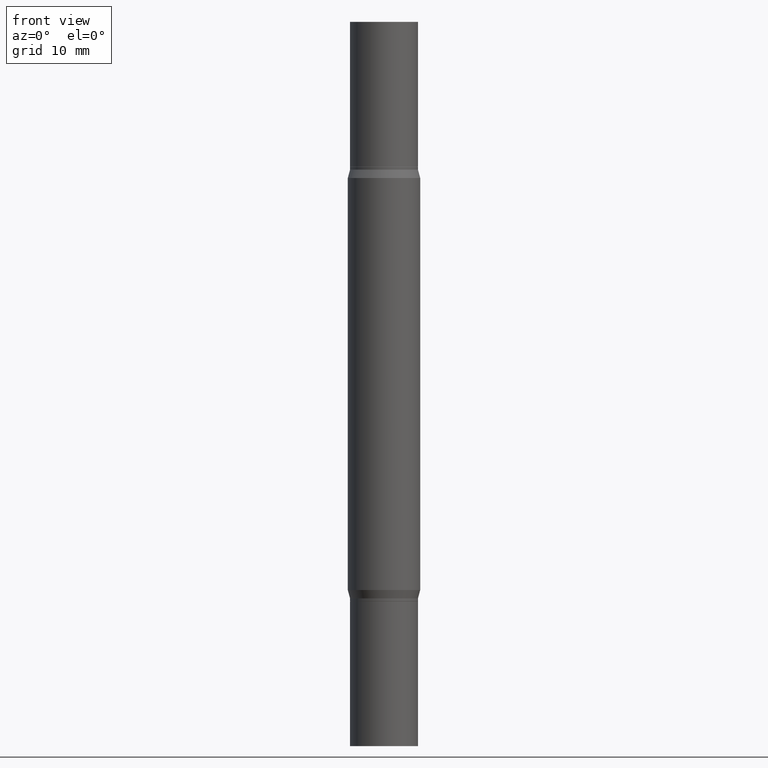
[diagram: clean part render]
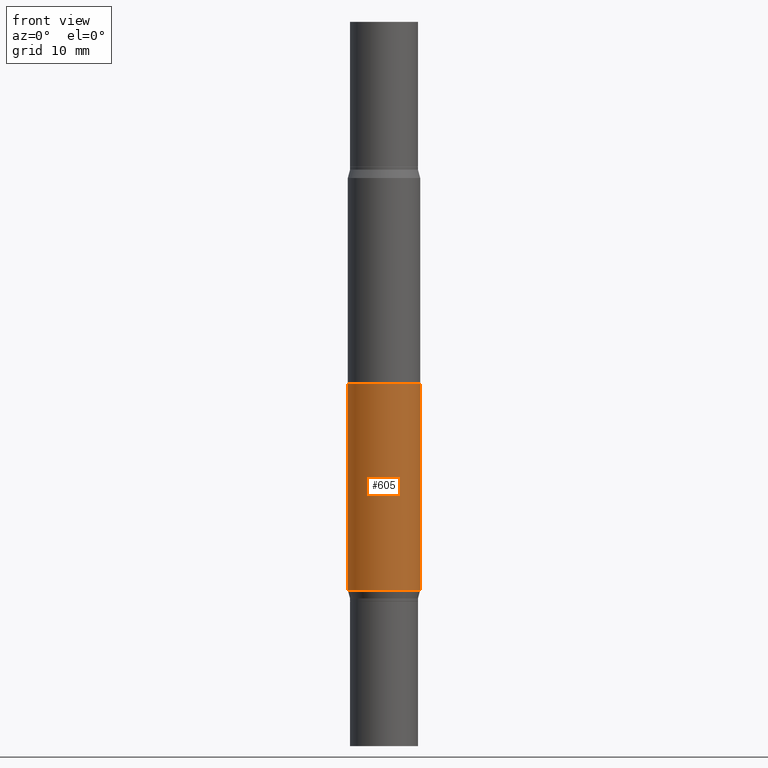
[diagram: same view with one face highlighted and labeled with its STEP entity id]
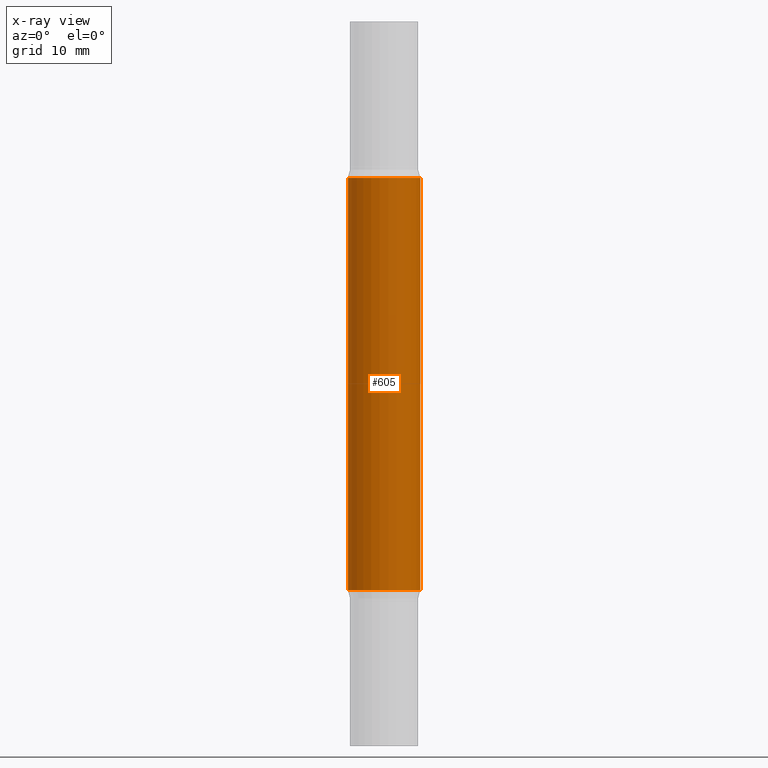
[diagram: x-ray of the same camera — body ghosted, the highlighted face saturated]
A machine part, front view. The second image highlights one B-rep face of the part: STEP entity #605.
The next image is the same camera in x-ray: the body ghosted, the highlighted face saturated — about 0% of this face is hidden behind the body in this view.
In plain terms, the highlighted cylindrical surface (edge-blend (fillet) strip) has radius 3.175 mm, axis along (-0, -0, -1).
Its self-contained STEP definition (entity closure, byte-faithful):
#47 = VECTOR ( 'NONE', #360, 39.37007874015748143 ) ;
#157 = DIRECTION ( 'NONE',  ( -2.445468806185136597E-29, -3.491805094961124077E-15, -1.000000000000000000 ) ) ;
#162 = DIRECTION ( 'NONE',  ( 1.000000000000000000, -6.982962677686266711E-15, 0.000000000000000000 ) ) ;
#180 = DIRECTION ( 'NONE',  ( 2.445468806185136597E-29, 3.491805094961124077E-15, 1.000000000000000000 ) ) ;
#208 = CARTESIAN_POINT ( 'NONE',  ( 0.1250000000000000000, -9.601978376966118441E-15, -2.499999999999999556 ) ) ;
#231 = ORIENTED_EDGE ( 'NONE', *, *, #818, .F. ) ;
#257 = VERTEX_POINT ( 'NONE', #798 ) ;
#287 = AXIS2_PLACEMENT_3D ( 'NONE', #743, #907, #298 ) ;
#298 = DIRECTION ( 'NONE',  ( 1.000000000000000000, -6.982962677686270655E-15, 0.000000000000000000 ) ) ;
#302 = VECTOR ( 'NONE', #559, 39.37007874015748143 ) ;
#312 = CARTESIAN_POINT ( 'NONE',  ( 4.795295336410958635E-29, -1.882062336673981410E-15, -0.5391099962990381078 ) ) ;
#360 = DIRECTION ( 'NONE',  ( -2.445468806185136877E-29, -3.491805094961123683E-15, -1.000000000000000000 ) ) ;
#394 = FACE_OUTER_BOUND ( 'NONE', #482, .T. ) ;
#432 = EDGE_CURVE ( 'NONE', #736, #440, #795, .T. ) ;
#440 = VERTEX_POINT ( 'NONE', #904 ) ;
#464 = VERTEX_POINT ( 'NONE', #894 ) ;
#482 = EDGE_LOOP ( 'NONE', ( #822, #733, #748, #231 ) ) ;
#484 = CYLINDRICAL_SURFACE ( 'NONE', #744, 0.1250000000000000000 ) ;
#544 = DIRECTION ( 'NONE',  ( 1.000000000000000000, -6.982962677686262766E-15, 0.000000000000000000 ) ) ;
#559 = DIRECTION ( 'NONE',  ( -2.445468806185136877E-29, -3.491805094961123683E-15, -1.000000000000000000 ) ) ;
#561 = EDGE_CURVE ( 'NONE', #257, #464, #915, .T. ) ;
#605 = ADVANCED_FACE ( 'NONE', ( #394 ), #484, .T. ) ;
#636 = AXIS2_PLACEMENT_3D ( 'NONE', #312, #180, #162 ) ;
#717 = CARTESIAN_POINT ( 'NONE',  ( -0.1250000000000000000, -7.871545792533893657E-15, -2.499999999999999556 ) ) ;
#733 = ORIENTED_EDGE ( 'NONE', *, *, #782, .T. ) ;
#736 = VERTEX_POINT ( 'NONE', #797 ) ;
#743 = CARTESIAN_POINT ( 'NONE',  ( 4.795295336410958635E-29, -6.846410855445973637E-15, -1.960890003700961337 ) ) ;
#744 = AXIS2_PLACEMENT_3D ( 'NONE', #783, #157, #544 ) ;
#748 = ORIENTED_EDGE ( 'NONE', *, *, #432, .T. ) ;
#782 = EDGE_CURVE ( 'NONE', #257, #736, #874, .T. ) ;
#783 = CARTESIAN_POINT ( 'NONE',  ( 0.000000000000000000, -8.729108042255335103E-15, -2.499999999999999556 ) ) ;
#795 = CIRCLE ( 'NONE', #287, 0.1250000000000000000 ) ;
#797 = CARTESIAN_POINT ( 'NONE',  ( -0.1250000000000000000, -3.506789423832489448E-15, -1.960890003700961337 ) ) ;
#798 = CARTESIAN_POINT ( 'NONE',  ( -0.1250000000000000000, -1.024500086952540162E-15, -0.5391099962990381078 ) ) ;
#818 = EDGE_CURVE ( 'NONE', #464, #440, #864, .T. ) ;
#822 = ORIENTED_EDGE ( 'NONE', *, *, #561, .F. ) ;
#864 = LINE ( 'NONE', #208, #47 ) ;
#874 = LINE ( 'NONE', #717, #302 ) ;
#894 = CARTESIAN_POINT ( 'NONE',  ( 0.1250000000000000000, -2.754932671384765144E-15, -0.5391099962990381078 ) ) ;
#904 = CARTESIAN_POINT ( 'NONE',  ( 0.1250000000000000000, -7.719281190156756975E-15, -1.960890003700961337 ) ) ;
#907 = DIRECTION ( 'NONE',  ( -2.445468806185136597E-29, 3.491481338843145583E-15, 1.000000000000000000 ) ) ;
#915 = CIRCLE ( 'NONE', #636, 0.1250000000000000000 ) ;